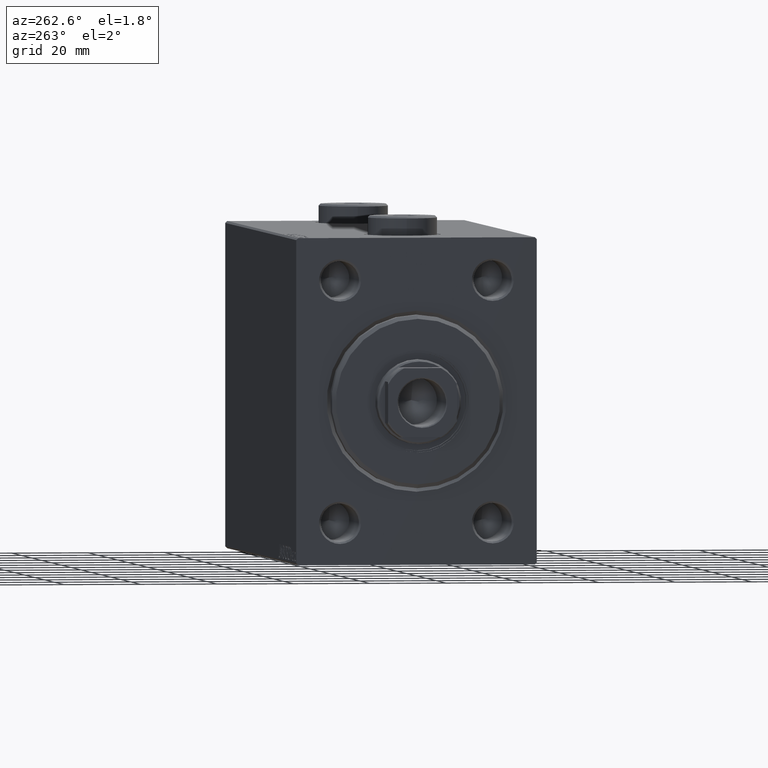
[diagram: clean part render]
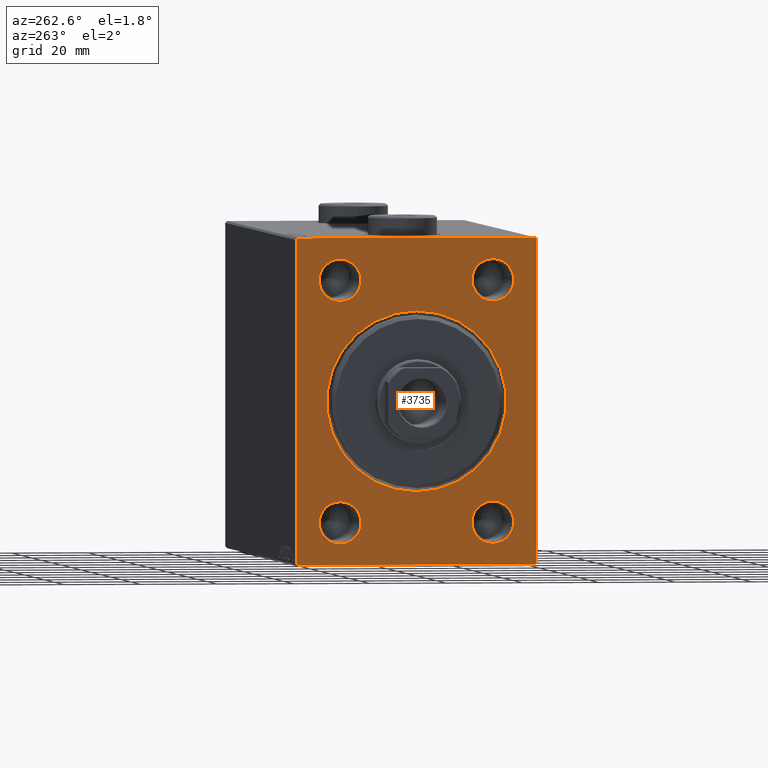
[diagram: same view with one face highlighted and labeled with its STEP entity id]
A machine part, auxiliary view. The second image highlights one B-rep face of the part: STEP entity #3735.
In plain terms, the highlighted planar face has unit normal (1, 0, 0).
Its self-contained STEP definition (entity closure, byte-faithful):
#4 = CIRCLE ( 'NONE', #31658, 5.500000000000005329 ) ;
#115 = VERTEX_POINT ( 'NONE', #9683 ) ;
#782 = AXIS2_PLACEMENT_3D ( 'NONE', #12313, #12772, #40432 ) ;
#996 = EDGE_LOOP ( 'NONE', ( #30094, #25070 ) ) ;
#1047 = CARTESIAN_POINT ( 'NONE',  ( 0.000000000000000000, 0.000000000000000000, 0.000000000000000000 ) ) ;
#1503 = CARTESIAN_POINT ( 'NONE',  ( 0.000000000000000000, 19.99999999999999645, 31.50000000000000000 ) ) ;
#1510 = EDGE_CURVE ( 'NONE', #36201, #26743, #4, .T. ) ;
#1820 = DIRECTION ( 'NONE',  ( 0.000000000000000000, -1.632680918566406547E-16, 1.000000000000000000 ) ) ;
#1882 = LINE ( 'NONE', #29298, #31247 ) ;
#2837 = CARTESIAN_POINT ( 'NONE',  ( 0.000000000000000000, -20.00000000000000355, -37.00000000000000711 ) ) ;
#3374 = CARTESIAN_POINT ( 'NONE',  ( 0.000000000000000000, -20.00000000000000355, -31.50000000000000000 ) ) ;
#3477 = EDGE_CURVE ( 'NONE', #31148, #10202, #41831, .T. ) ;
#3540 = FACE_BOUND ( 'NONE', #996, .T. ) ;
#3735 = ADVANCED_FACE ( 'NONE', ( #11368, #42476, #3540, #7677, #14834, #14371 ), #3771, .F. ) ;
#3771 = PLANE ( 'NONE',  #37453 ) ;
#3977 = CARTESIAN_POINT ( 'NONE',  ( 0.000000000000000000, -31.00000000000000000, -42.50000000000000711 ) ) ;
#4111 = VERTEX_POINT ( 'NONE', #11708 ) ;
#4279 = VERTEX_POINT ( 'NONE', #37070 ) ;
#4443 = CARTESIAN_POINT ( 'NONE',  ( 0.000000000000000000, 19.99999999999999645, 25.99999999999999645 ) ) ;
#4481 = EDGE_CURVE ( 'NONE', #19943, #20476, #21587, .T. ) ;
#4562 = EDGE_LOOP ( 'NONE', ( #20950, #43771, #23763, #13021, #43346, #37246, #16358, #23472 ) ) ;
#4773 = AXIS2_PLACEMENT_3D ( 'NONE', #1503, #15557, #29614 ) ;
#4867 = EDGE_LOOP ( 'NONE', ( #30295, #21549 ) ) ;
#4949 = DIRECTION ( 'NONE',  ( 0.000000000000000000, 0.000000000000000000, -1.000000000000000000 ) ) ;
#5227 = CARTESIAN_POINT ( 'NONE',  ( 0.000000000000000000, 31.50000000000001421, -42.00000000000000711 ) ) ;
#5989 = CIRCLE ( 'NONE', #10373, 5.500000000000005329 ) ;
#6454 = CARTESIAN_POINT ( 'NONE',  ( 0.000000000000000000, -31.00000000000000000, 42.49999999999998579 ) ) ;
#6863 = CARTESIAN_POINT ( 'NONE',  ( 0.000000000000000000, 31.50000000000000000, 42.49999999999999289 ) ) ;
#7086 = CARTESIAN_POINT ( 'NONE',  ( 0.000000000000000000, -31.00000000000000000, -42.50000000000000711 ) ) ;
#7677 = FACE_BOUND ( 'NONE', #35947, .T. ) ;
#7796 = DIRECTION ( 'NONE',  ( 0.000000000000000000, 0.000000000000000000, -1.000000000000000000 ) ) ;
#7904 = DIRECTION ( 'NONE',  ( 1.000000000000000000, 0.000000000000000000, 0.000000000000000000 ) ) ;
#7932 = DIRECTION ( 'NONE',  ( 1.000000000000000000, 0.000000000000000000, 0.000000000000000000 ) ) ;
#8429 = EDGE_LOOP ( 'NONE', ( #42484, #39760 ) ) ;
#8497 = CARTESIAN_POINT ( 'NONE',  ( 0.000000000000000000, -31.50000000000000000, 41.99999999999998579 ) ) ;
#8823 = CIRCLE ( 'NONE', #13980, 5.500000000000005329 ) ;
#9096 = EDGE_CURVE ( 'NONE', #25755, #43872, #10236, .T. ) ;
#9683 = CARTESIAN_POINT ( 'NONE',  ( 0.000000000000000000, 19.99999999999999645, 37.00000000000000711 ) ) ;
#10202 = VERTEX_POINT ( 'NONE', #2837 ) ;
#10236 = CIRCLE ( 'NONE', #18368, 23.50000000000001776 ) ;
#10373 = AXIS2_PLACEMENT_3D ( 'NONE', #20515, #24834, #42342 ) ;
#10381 = VECTOR ( 'NONE', #34010, 1000.000000000000114 ) ;
#10511 = CIRCLE ( 'NONE', #37029, 23.50000000000001776 ) ;
#11130 = CARTESIAN_POINT ( 'NONE',  ( 0.000000000000000000, 0.000000000000000000, 0.000000000000000000 ) ) ;
#11368 = FACE_BOUND ( 'NONE', #17192, .T. ) ;
#11618 = CARTESIAN_POINT ( 'NONE',  ( 0.000000000000000000, -20.00000000000000355, 25.99999999999999645 ) ) ;
#11708 = CARTESIAN_POINT ( 'NONE',  ( 0.000000000000000000, 31.50000000000000000, 42.00000000000002132 ) ) ;
#11717 = LINE ( 'NONE', #25781, #22449 ) ;
#11917 = ORIENTED_EDGE ( 'NONE', *, *, #19630, .T. ) ;
#12023 = CARTESIAN_POINT ( 'NONE',  ( 0.000000000000000000, -31.50000000000000000, -42.00000000000000000 ) ) ;
#12115 = LINE ( 'NONE', #23402, #10381 ) ;
#12313 = CARTESIAN_POINT ( 'NONE',  ( 0.000000000000000000, 19.99999999999999645, -31.50000000000000000 ) ) ;
#12772 = DIRECTION ( 'NONE',  ( 1.000000000000000000, 0.000000000000000000, 0.000000000000000000 ) ) ;
#13021 = ORIENTED_EDGE ( 'NONE', *, *, #14598, .T. ) ;
#13506 = DIRECTION ( 'NONE',  ( 0.000000000000000000, 0.000000000000000000, -1.000000000000000000 ) ) ;
#13980 = AXIS2_PLACEMENT_3D ( 'NONE', #23874, #27318, #24093 ) ;
#14044 = AXIS2_PLACEMENT_3D ( 'NONE', #17255, #28080, #7796 ) ;
#14305 = EDGE_CURVE ( 'NONE', #21753, #20476, #24499, .T. ) ;
#14371 = FACE_OUTER_BOUND ( 'NONE', #4562, .T. ) ;
#14447 = EDGE_CURVE ( 'NONE', #36034, #41606, #5989, .T. ) ;
#14459 = VERTEX_POINT ( 'NONE', #6454 ) ;
#14598 = EDGE_CURVE ( 'NONE', #38847, #4111, #22074, .T. ) ;
#14834 = FACE_BOUND ( 'NONE', #4867, .T. ) ;
#15347 = CARTESIAN_POINT ( 'NONE',  ( 0.000000000000000000, -31.50000000000000000, 42.49999999999998579 ) ) ;
#15557 = DIRECTION ( 'NONE',  ( 1.000000000000000000, 0.000000000000000000, 0.000000000000000000 ) ) ;
#16358 = ORIENTED_EDGE ( 'NONE', *, *, #23264, .F. ) ;
#16786 = DIRECTION ( 'NONE',  ( 0.000000000000000000, -1.000000000000000000, -1.101411730778925171E-16 ) ) ;
#17192 = EDGE_LOOP ( 'NONE', ( #23426, #11917 ) ) ;
#17255 = CARTESIAN_POINT ( 'NONE',  ( 0.000000000000000000, -20.00000000000000355, 31.50000000000000000 ) ) ;
#17788 = DIRECTION ( 'NONE',  ( 0.000000000000000000, 0.000000000000000000, -1.000000000000000000 ) ) ;
#18368 = AXIS2_PLACEMENT_3D ( 'NONE', #1047, #7932, #4949 ) ;
#18562 = DIRECTION ( 'NONE',  ( 0.000000000000000000, -0.7071067811865474617, -0.7071067811865474617 ) ) ;
#18951 = DIRECTION ( 'NONE',  ( 0.000000000000000000, 0.000000000000000000, -1.000000000000000000 ) ) ;
#19482 = CARTESIAN_POINT ( 'NONE',  ( 0.000000000000000000, 31.00000000000002842, 42.49999999999999289 ) ) ;
#19550 = DIRECTION ( 'NONE',  ( 0.000000000000000000, 0.000000000000000000, -1.000000000000000000 ) ) ;
#19630 = EDGE_CURVE ( 'NONE', #43872, #25755, #10511, .T. ) ;
#19943 = VERTEX_POINT ( 'NONE', #8497 ) ;
#20476 = VERTEX_POINT ( 'NONE', #12023 ) ;
#20515 = CARTESIAN_POINT ( 'NONE',  ( 0.000000000000000000, -20.00000000000000355, 31.50000000000000000 ) ) ;
#20627 = CIRCLE ( 'NONE', #782, 5.500000000000005329 ) ;
#20950 = ORIENTED_EDGE ( 'NONE', *, *, #4481, .F. ) ;
#21484 = CARTESIAN_POINT ( 'NONE',  ( 0.000000000000000000, 0.000000000000000000, 0.000000000000000000 ) ) ;
#21549 = ORIENTED_EDGE ( 'NONE', *, *, #1510, .T. ) ;
#21587 = LINE ( 'NONE', #15347, #26417 ) ;
#21598 = EDGE_CURVE ( 'NONE', #38847, #14459, #24384, .T. ) ;
#21616 = CARTESIAN_POINT ( 'NONE',  ( 0.000000000000000000, 31.00000000000002842, 42.49999999999999289 ) ) ;
#21753 = VERTEX_POINT ( 'NONE', #7086 ) ;
#21755 = CARTESIAN_POINT ( 'NONE',  ( 0.000000000000000000, 0.000000000000000000, 23.50000000000001776 ) ) ;
#22010 = LINE ( 'NONE', #39976, #25941 ) ;
#22074 = LINE ( 'NONE', #21616, #31740 ) ;
#22449 = VECTOR ( 'NONE', #1820, 1000.000000000000000 ) ;
#23264 = EDGE_CURVE ( 'NONE', #21753, #4279, #1882, .T. ) ;
#23402 = CARTESIAN_POINT ( 'NONE',  ( 0.000000000000000000, -31.50000000000000000, 41.99999999999998579 ) ) ;
#23426 = ORIENTED_EDGE ( 'NONE', *, *, #9096, .T. ) ;
#23472 = ORIENTED_EDGE ( 'NONE', *, *, #14305, .T. ) ;
#23666 = CARTESIAN_POINT ( 'NONE',  ( 0.000000000000000000, 19.99999999999999645, -31.50000000000000000 ) ) ;
#23763 = ORIENTED_EDGE ( 'NONE', *, *, #21598, .F. ) ;
#23874 = CARTESIAN_POINT ( 'NONE',  ( 0.000000000000000000, 19.99999999999999645, 31.50000000000000000 ) ) ;
#24093 = DIRECTION ( 'NONE',  ( 0.000000000000000000, 0.000000000000000000, -1.000000000000000000 ) ) ;
#24299 = CARTESIAN_POINT ( 'NONE',  ( 0.000000000000000000, -20.00000000000000355, -25.99999999999999645 ) ) ;
#24384 = LINE ( 'NONE', #6863, #40758 ) ;
#24499 = LINE ( 'NONE', #3977, #41283 ) ;
#24635 = CIRCLE ( 'NONE', #4773, 5.500000000000005329 ) ;
#24834 = DIRECTION ( 'NONE',  ( 1.000000000000000000, 0.000000000000000000, 0.000000000000000000 ) ) ;
#25070 = ORIENTED_EDGE ( 'NONE', *, *, #14447, .T. ) ;
#25755 = VERTEX_POINT ( 'NONE', #21755 ) ;
#25781 = CARTESIAN_POINT ( 'NONE',  ( 0.000000000000000000, 31.50000000000001421, -42.50000000000000711 ) ) ;
#25941 = VECTOR ( 'NONE', #18562, 1000.000000000000114 ) ;
#26417 = VECTOR ( 'NONE', #38858, 1000.000000000000000 ) ;
#26563 = CIRCLE ( 'NONE', #14044, 5.500000000000005329 ) ;
#26743 = VERTEX_POINT ( 'NONE', #41520 ) ;
#27187 = EDGE_CURVE ( 'NONE', #35859, #4111, #11717, .T. ) ;
#27318 = DIRECTION ( 'NONE',  ( 1.000000000000000000, 0.000000000000000000, 0.000000000000000000 ) ) ;
#27974 = EDGE_CURVE ( 'NONE', #115, #28232, #24635, .T. ) ;
#28080 = DIRECTION ( 'NONE',  ( 1.000000000000000000, 0.000000000000000000, 0.000000000000000000 ) ) ;
#28232 = VERTEX_POINT ( 'NONE', #4443 ) ;
#28982 = DIRECTION ( 'NONE',  ( -0.000000000000000000, 0.7071067811865474617, -0.7071067811865474617 ) ) ;
#29298 = CARTESIAN_POINT ( 'NONE',  ( 0.000000000000000000, -31.50000000000000000, -42.50000000000000711 ) ) ;
#29614 = DIRECTION ( 'NONE',  ( 0.000000000000000000, 0.000000000000000000, -1.000000000000000000 ) ) ;
#29876 = CARTESIAN_POINT ( 'NONE',  ( 0.000000000000000000, -20.00000000000000355, 37.00000000000000711 ) ) ;
#30094 = ORIENTED_EDGE ( 'NONE', *, *, #40355, .T. ) ;
#30295 = ORIENTED_EDGE ( 'NONE', *, *, #38862, .T. ) ;
#31027 = DIRECTION ( 'NONE',  ( 1.000000000000000000, 0.000000000000000000, 0.000000000000000000 ) ) ;
#31148 = VERTEX_POINT ( 'NONE', #24299 ) ;
#31247 = VECTOR ( 'NONE', #36002, 1000.000000000000000 ) ;
#31658 = AXIS2_PLACEMENT_3D ( 'NONE', #23666, #33818, #19550 ) ;
#31740 = VECTOR ( 'NONE', #28982, 1000.000000000000114 ) ;
#31852 = DIRECTION ( 'NONE',  ( 1.000000000000000000, 0.000000000000000000, 0.000000000000000000 ) ) ;
#32009 = CARTESIAN_POINT ( 'NONE',  ( 0.000000000000000000, 2.877919977996282293E-15, -23.50000000000001776 ) ) ;
#33818 = DIRECTION ( 'NONE',  ( 1.000000000000000000, 0.000000000000000000, 0.000000000000000000 ) ) ;
#34010 = DIRECTION ( 'NONE',  ( -0.000000000000000000, 0.7071067811865474617, 0.7071067811865474617 ) ) ;
#35068 = EDGE_CURVE ( 'NONE', #10202, #31148, #41866, .T. ) ;
#35162 = ORIENTED_EDGE ( 'NONE', *, *, #36734, .T. ) ;
#35859 = VERTEX_POINT ( 'NONE', #5227 ) ;
#35947 = EDGE_LOOP ( 'NONE', ( #37731, #35162 ) ) ;
#36002 = DIRECTION ( 'NONE',  ( 0.000000000000000000, 1.000000000000000000, 0.000000000000000000 ) ) ;
#36034 = VERTEX_POINT ( 'NONE', #11618 ) ;
#36201 = VERTEX_POINT ( 'NONE', #40195 ) ;
#36470 = DIRECTION ( 'NONE',  ( 1.000000000000000000, 0.000000000000000000, 0.000000000000000000 ) ) ;
#36734 = EDGE_CURVE ( 'NONE', #28232, #115, #8823, .T. ) ;
#37029 = AXIS2_PLACEMENT_3D ( 'NONE', #21484, #31852, #17788 ) ;
#37070 = CARTESIAN_POINT ( 'NONE',  ( 0.000000000000000000, 31.00000000000001421, -42.50000000000000711 ) ) ;
#37246 = ORIENTED_EDGE ( 'NONE', *, *, #43288, .T. ) ;
#37453 = AXIS2_PLACEMENT_3D ( 'NONE', #11130, #7904, #39257 ) ;
#37731 = ORIENTED_EDGE ( 'NONE', *, *, #27974, .T. ) ;
#38847 = VERTEX_POINT ( 'NONE', #19482 ) ;
#38858 = DIRECTION ( 'NONE',  ( 0.000000000000000000, 0.000000000000000000, -1.000000000000000000 ) ) ;
#38862 = EDGE_CURVE ( 'NONE', #26743, #36201, #20627, .T. ) ;
#39257 = DIRECTION ( 'NONE',  ( 0.000000000000000000, 0.000000000000000000, -1.000000000000000000 ) ) ;
#39652 = AXIS2_PLACEMENT_3D ( 'NONE', #3374, #31027, #13506 ) ;
#39658 = AXIS2_PLACEMENT_3D ( 'NONE', #39915, #36470, #18951 ) ;
#39760 = ORIENTED_EDGE ( 'NONE', *, *, #35068, .T. ) ;
#39915 = CARTESIAN_POINT ( 'NONE',  ( 0.000000000000000000, -20.00000000000000355, -31.50000000000000000 ) ) ;
#39976 = CARTESIAN_POINT ( 'NONE',  ( 0.000000000000000000, 31.50000000000001421, -42.00000000000000711 ) ) ;
#40195 = CARTESIAN_POINT ( 'NONE',  ( 0.000000000000000000, 19.99999999999999645, -37.00000000000000711 ) ) ;
#40355 = EDGE_CURVE ( 'NONE', #41606, #36034, #26563, .T. ) ;
#40432 = DIRECTION ( 'NONE',  ( 0.000000000000000000, 0.000000000000000000, -1.000000000000000000 ) ) ;
#40758 = VECTOR ( 'NONE', #16786, 1000.000000000000000 ) ;
#41283 = VECTOR ( 'NONE', #42929, 999.9999999999998863 ) ;
#41520 = CARTESIAN_POINT ( 'NONE',  ( 0.000000000000000000, 19.99999999999999645, -25.99999999999999645 ) ) ;
#41606 = VERTEX_POINT ( 'NONE', #29876 ) ;
#41831 = CIRCLE ( 'NONE', #39652, 5.500000000000005329 ) ;
#41866 = CIRCLE ( 'NONE', #39658, 5.500000000000005329 ) ;
#42342 = DIRECTION ( 'NONE',  ( 0.000000000000000000, 0.000000000000000000, -1.000000000000000000 ) ) ;
#42476 = FACE_BOUND ( 'NONE', #8429, .T. ) ;
#42484 = ORIENTED_EDGE ( 'NONE', *, *, #3477, .T. ) ;
#42929 = DIRECTION ( 'NONE',  ( -0.000000000000000000, -0.7071067811865425767, 0.7071067811865525687 ) ) ;
#43288 = EDGE_CURVE ( 'NONE', #35859, #4279, #22010, .T. ) ;
#43346 = ORIENTED_EDGE ( 'NONE', *, *, #27187, .F. ) ;
#43771 = ORIENTED_EDGE ( 'NONE', *, *, #45201, .T. ) ;
#43872 = VERTEX_POINT ( 'NONE', #32009 ) ;
#45201 = EDGE_CURVE ( 'NONE', #19943, #14459, #12115, .T. ) ;